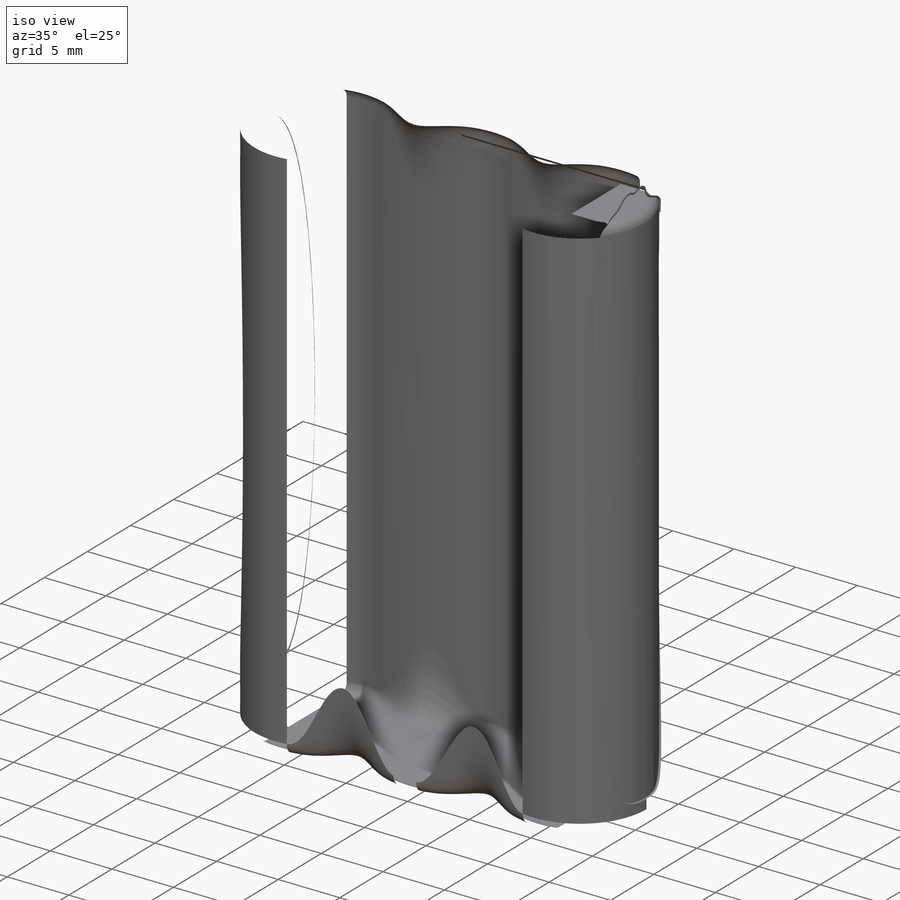
[diagram: iso view]
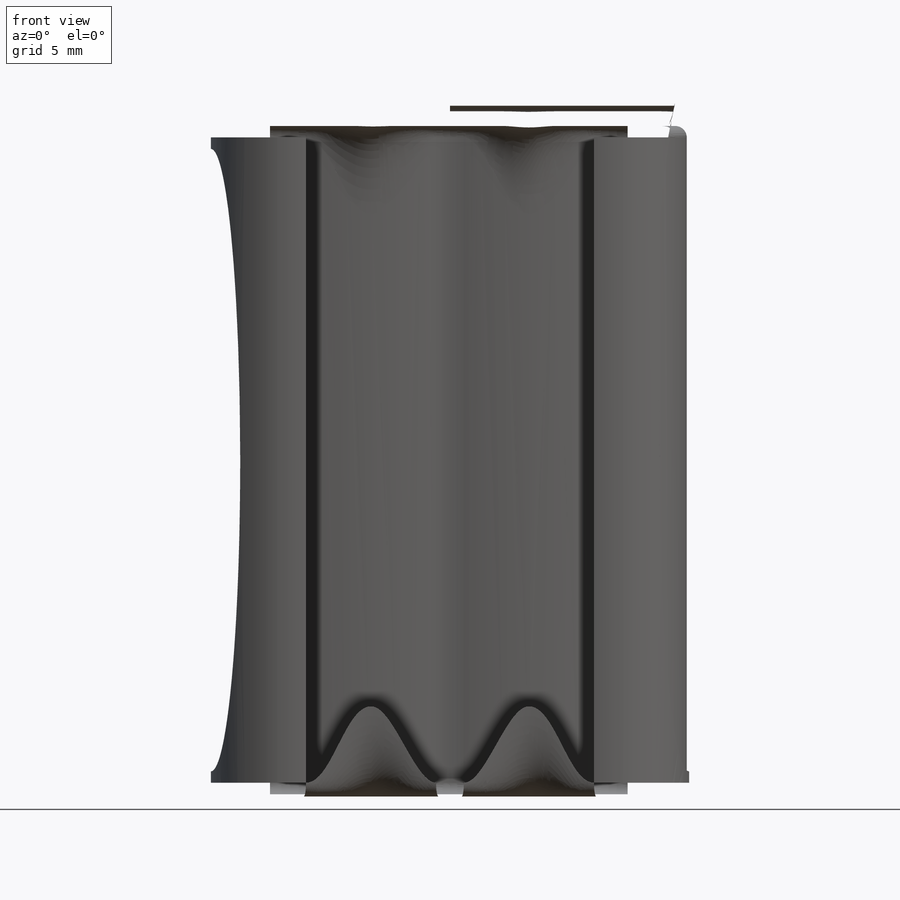
[diagram: front view]
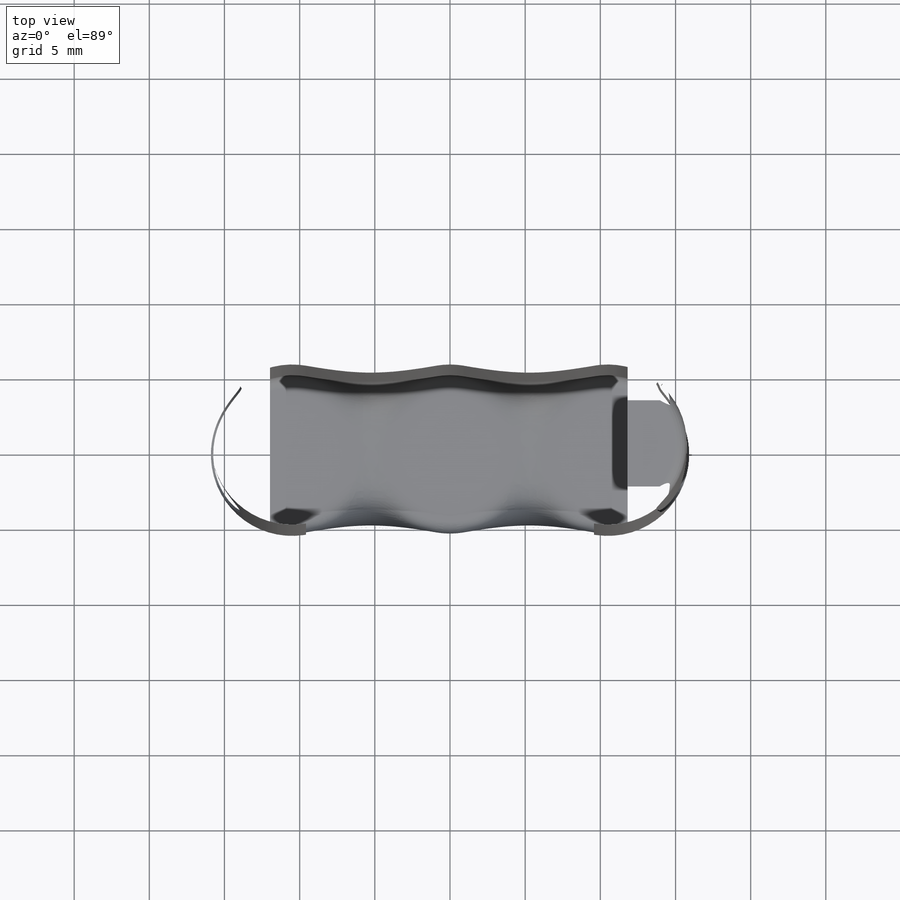
[diagram: top view]
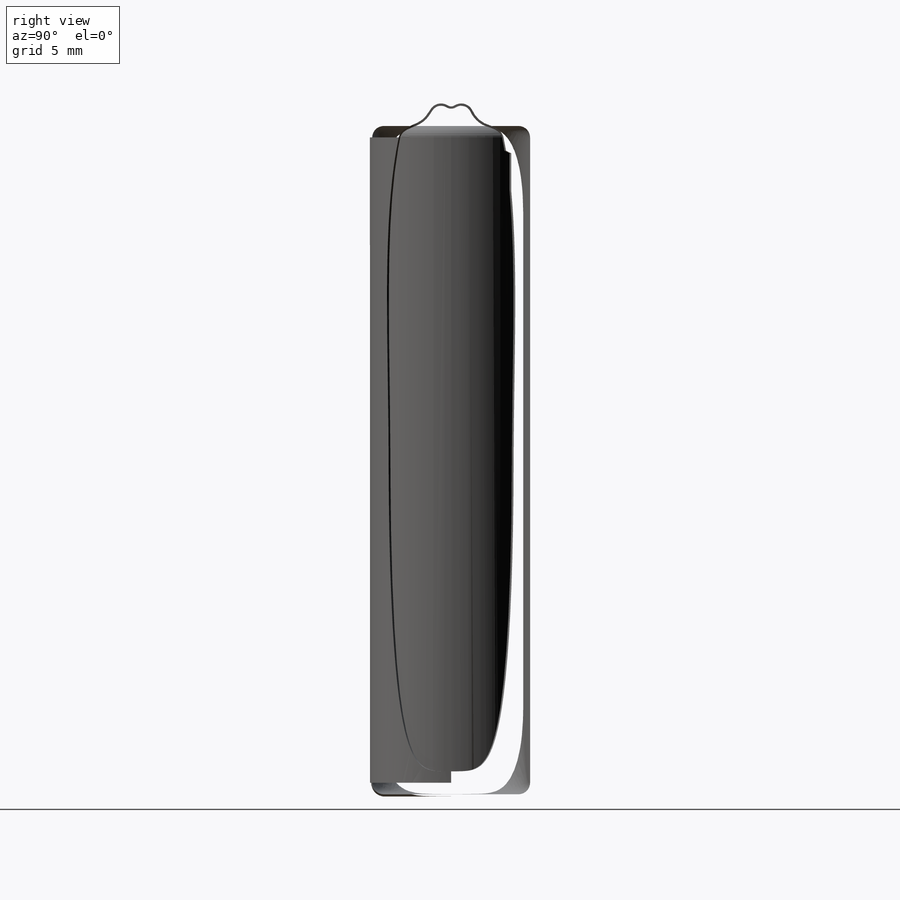
[diagram: right view]
SOLIDWORKS PART (.sldprt)
format: sldprt  version: not decoded by parser v0  size: 4,668,928 bytes
history: native  units: mm
features: sketch x23, extrude x5, fillet x3, mirror x2, surface_op x2, plane x2, sweep x2, material x1, cut_extrude x1, delete_body x1, curve x1 (+11 scaffold rows collapsed)
feature tree (54):
  scaffold x11  (default folders/planes/origin — collapsed)
  material  "Material <not specified>"
  sketch  "Sketch1"  dims[D1=~10.50036mm D2=25.4mm D3=6.35mm]
  extrude  "Extrude1"  Depth=44.45mm
  fillet  "Fillet1"  Radius=0.762mm
  sketch  "Sketch2"  dims[D1=41.402mm]
  sketch  "Sketch4"
  sketch  "Sketch5"
  sketch  "Sketch6"  dims[D1=5.08mm]
  mirror  "Mirror1"
  sketch  "Sketch7"
  mirror  "Mirror2"
  sketch  "Sketch8"  dims[D1=1.3462mm]
  surface_op  "Surface-Extrude1"
  sketch  "Sketch10"
  sketch  "Sketch9"
  sketch  "Sketch11"
  sketch  "Sketch12"
  surface_op  "Surface-Knit2"
  fillet  "Fillet2"  Radius=1.778mm
  sketch  "Sketch13"
  cut_extrude  "Cut-Extrude1"  Depth=0.1524mm
  sketch  "Sketch14"
  extrude  "Extrude2"  Depth=14.732mm
  sketch  "Sketch15"
  extrude  "Extrude3"  Depth=0mm
  plane  "Plane1"
  plane  "Plane2"
  delete_body  "Body-Delete1"
  sketch  "Sketch16"  dims[D2=5.842mm D3=2.0828mm D4=6.1128mm D1=0.1778mm]
  extrude  "Extrude4"  Depth=5.461mm
  sketch  "Sketch17"  dims[D1=1.3462mm D2=2.54mm]
  extrude  "Extrude5"  Depth=0.7874mm
  sketch  "Sketch18"
  sketch  "Sketch19"
  sketch  "Sketch20"  dims[D1=0.0mm]
  sweep  "Sweep1"
  sketch  "Sketch21"
  sketch  "Sketch22"
  curve  "Curve2"
  sketch  "Sketch23"  dims[D1=0.0mm]
  sweep  "Sweep2"
  sketch  "Sketch24"
  fillet  "Fillet3"  Radius=0.254mm
decode coverage: 17 of 40 modeling features carry decoded parameters
note: ~ marks probable driven/reference dimensions
note: suppression state not decoded; provenance and decode notes live in map.json
